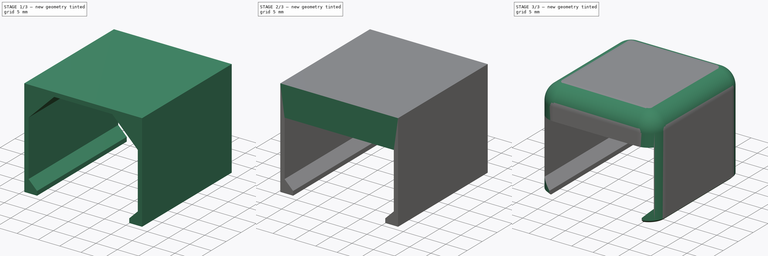
[diagram: build sequence overview — one tinted view per stage of 3, left to right]
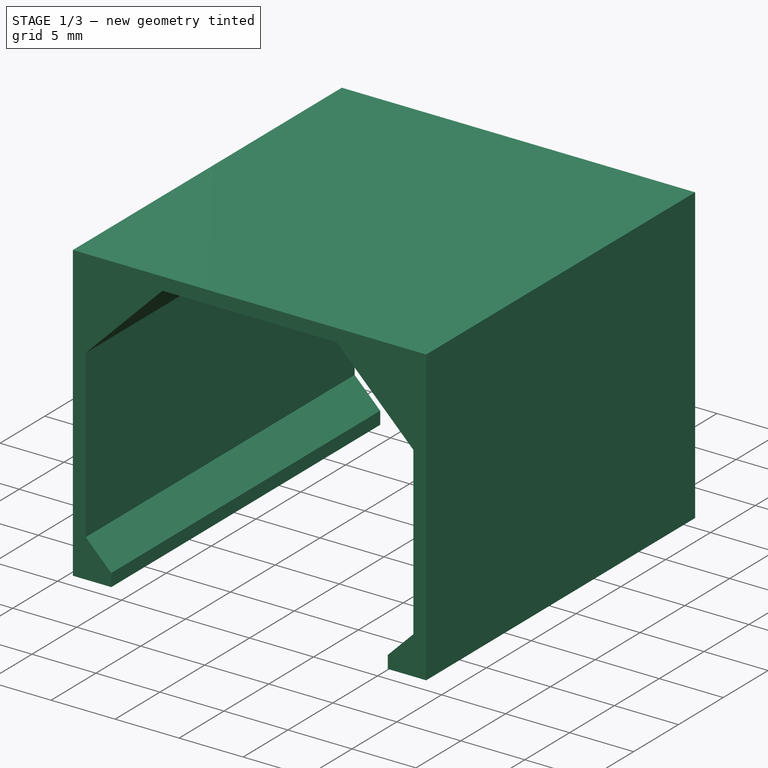
[diagram: stage 1 of 3 — iso view after this stage's code; geometry added in this stage tinted green]
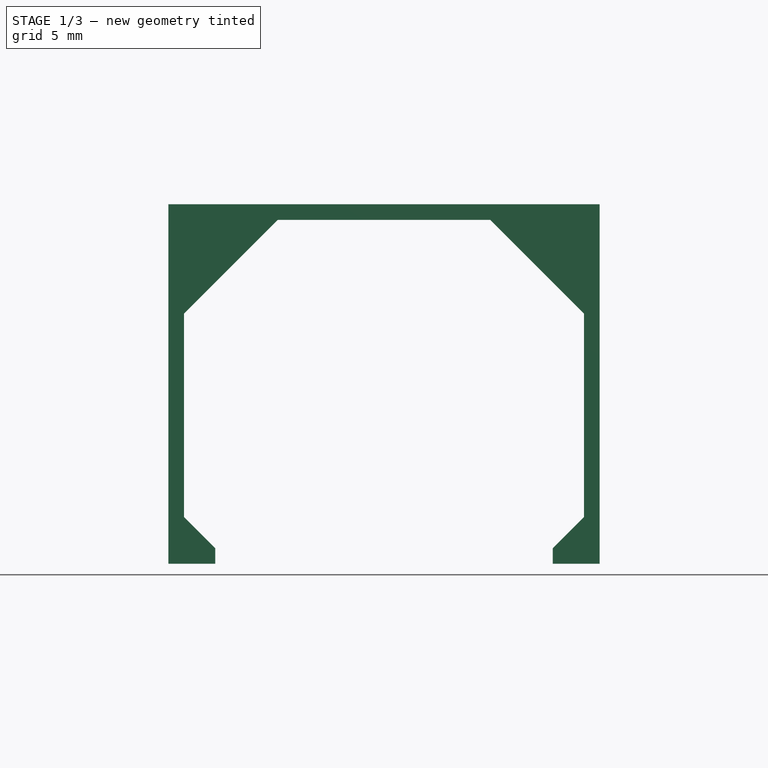
[diagram: stage 1 of 3 — front view after this stage's code; geometry added in this stage tinted green]
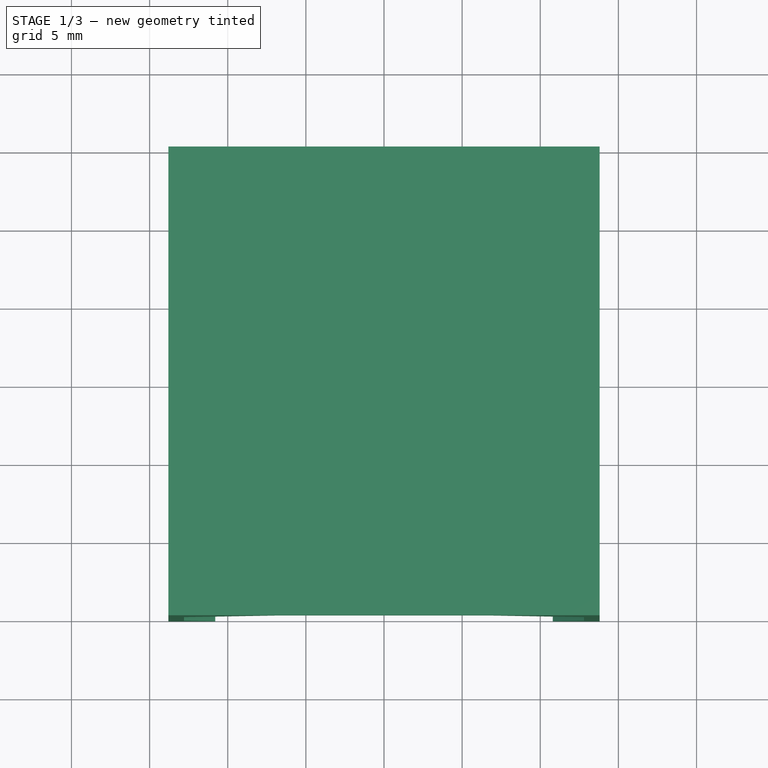
[diagram: stage 1 of 3 — top view after this stage's code; geometry added in this stage tinted green]
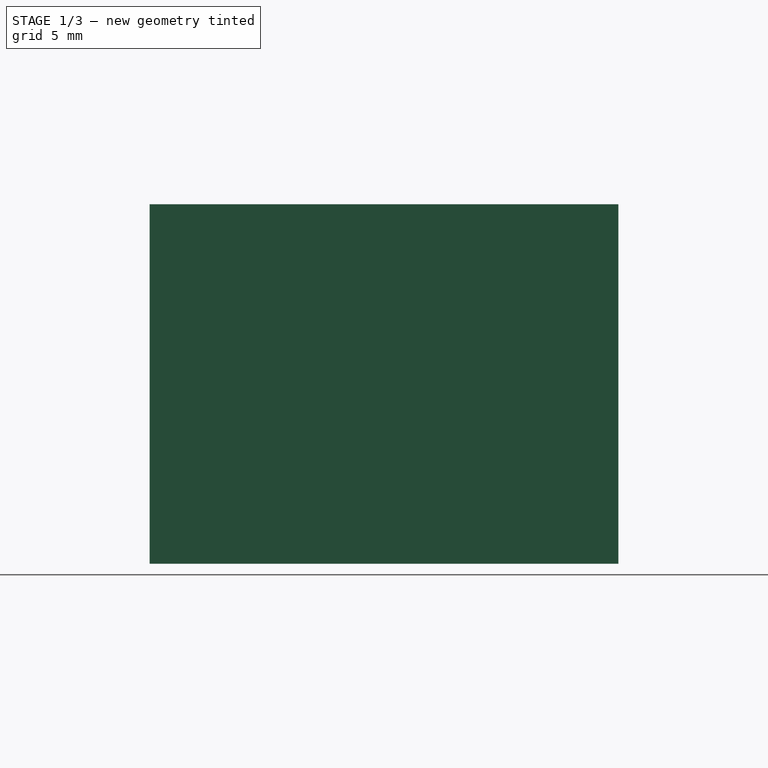
[diagram: stage 1 of 3 — right view after this stage's code; geometry added in this stage tinted green]
FCSTD DOCUMENT  (FreeCAD 1.0R39319 (Git))
Label: ChildCouchWallSwitchCover
License: All rights reserved
LicenseURL: https://en.wikipedia.org/wiki/All_rights_reserved
objects: Sketcher::SketchObject×3, PartDesign::Chamfer×3, PartDesign::Pad×2, PartDesign::Mirrored×1, PartDesign::Pocket×1, PartDesign::Fillet×1, PartDesign::Body×1
note: 30 computed .brp shape members not serialized (recipe doc carries the construction recipe); baked Part::Feature solids carry a one-line shape summary decoded from their .brp

FEATURE [Sketcher::SketchObject] Sketch
  ArcFitTolerance = 1e-06
  AttachmentSupport = -> [XZ_Plane]
  FullyConstrained = true
  MakeInternals = false
  MapMode = 5
  Placement = pos=(0,0,0) rot=(1,0,0;1.5708rad)
  expr: Constraints[19] = 15 mm + 6 mm
  sketch-geometry (12):
    g0: LineSegment StartX=-10.8 StartY=0 StartZ=0 EndX=-10.8 EndY=1 EndZ=0
    g1: LineSegment StartX=-10.8 StartY=1 StartZ=0 EndX=-12.8 EndY=1 EndZ=0
    g2: LineSegment StartX=-12.8 StartY=1 StartZ=0 EndX=-12.8 EndY=22 EndZ=0
    g3: LineSegment StartX=-13.8 StartY=23 StartZ=0 EndX=-13.8 EndY=0 EndZ=0
    g4: LineSegment StartX=-13.8 StartY=0 StartZ=0 EndX=-10.8 EndY=0 EndZ=0
    g5: LineSegment StartX=10.8 StartY=0 StartZ=0 EndX=10.8 EndY=1 EndZ=0
    g6: LineSegment StartX=10.8 StartY=1 StartZ=0 EndX=12.8 EndY=1 EndZ=0
    g7: LineSegment StartX=12.8 StartY=1 StartZ=0 EndX=12.8 EndY=22 EndZ=0
    g8: LineSegment StartX=13.8 StartY=23 StartZ=0 EndX=13.8 EndY=0 EndZ=0
    g9: LineSegment StartX=13.8 StartY=0 StartZ=0 EndX=10.8 EndY=0 EndZ=0
    g10: LineSegment StartX=-13.8 StartY=23 StartZ=0 EndX=13.8 EndY=23 EndZ=0
    g11: LineSegment StartX=12.8 StartY=22 StartZ=0 EndX=-12.8 EndY=22 EndZ=0
  constraints (31):
    c: PointOnObject(g0,g-1)
    c: Vertical(g0)
    c: Coincident(g0,g1)
    c: Horizontal(g1)
    c: Coincident(g1,g2)
    c: Vertical(g2)
    c: PointOnObject(g3,g-1)
    c: Vertical(g3)
    c: Coincident(g3,g4)
    c: Coincident(g4,g0)
    c: Vertical(g5)
    c: Coincident(g5,g6)
    c: Coincident(g6,g7)
    c: Coincident(g8,g9)
    c: Coincident(g9,g5)
    c: Coincident(g10,g3)
    c: Coincident(g10,g8)
    c: Coincident(g11,g7)
    c: Coincident(g11,g2)
    c: DistanceY(g7,g7) = 21
    c: DistanceY(g5,g5) = 1
    c: Horizontal(g9)
    c: Symmetric(g3,g8,g-2)
    c: Symmetric(g2,g7,g-2)
    c: Symmetric(g1,g6,g-2)
    c: Symmetric(g3,g8,g-2)
    c: Symmetric(g0,g5,g-2)
    c: DistanceX(g11,g11) = 25.6
    c: DistanceX(g6,g8) = 1
    c: DistanceY(g7,g8) = 1
    c: DistanceX(g1,g1) = 2
FEATURE [PartDesign::Pad] Pad
  Direction = (0,-1,2e-16)
  Length = 30
  Length2 = 10
  Midplane = true
  Placement = pos=(0,0,0) rot=(1,0,0;1.5708rad)
  Profile = -> Sketch
  ReferenceAxis = -> Sketch [N_Axis]
  Refine = true
  Suppressed = false
  Type = 0
FEATURE [PartDesign::Chamfer] Chamfer
  Angle = 45
  Base = -> Pad [Edge11,Edge20]
  BaseFeature = -> Pad
  ChamferType = 0
  FlipDirection = false
  Placement = pos=(0,0,0) rot=(1,0,0;1.5708rad)
  Refine = true
  Size = 1.99
  Size2 = 1
  SupportTransform = false
  Suppressed = false
  UseAllEdges = false
FEATURE [PartDesign::Chamfer] Chamfer001
  Angle = 45
  Base = -> Chamfer [Edge35,Edge33]
  BaseFeature = -> Chamfer
  ChamferType = 0
  FlipDirection = false
  Placement = pos=(0,0,0) rot=(1,0,0;1.5708rad)
  Refine = true
  Size = 6
  Size2 = 1
  SupportTransform = false
  Suppressed = false
  UseAllEdges = false
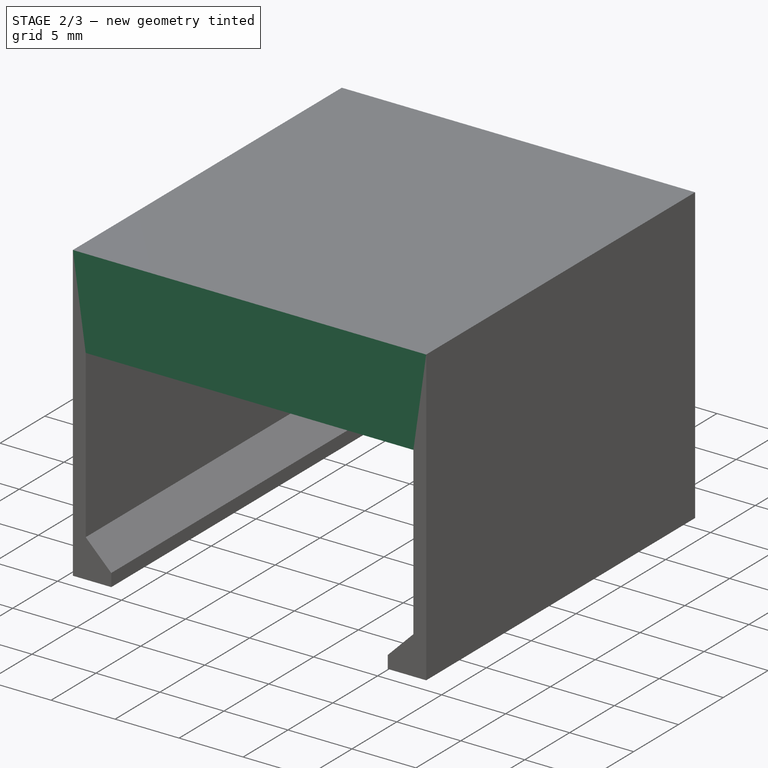
[diagram: stage 2 of 3 — iso view after this stage's code; geometry added in this stage tinted green]
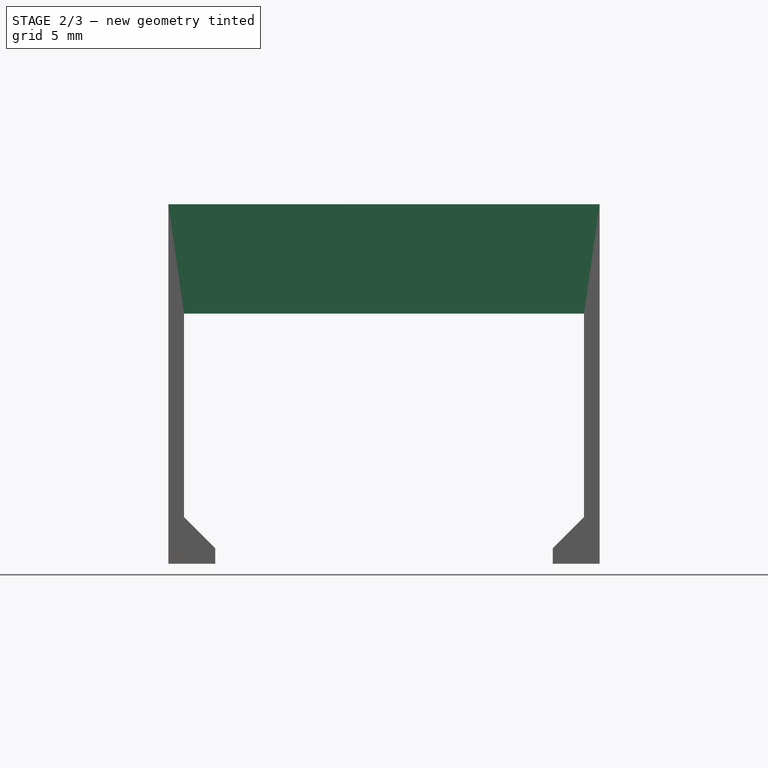
[diagram: stage 2 of 3 — front view after this stage's code; geometry added in this stage tinted green]
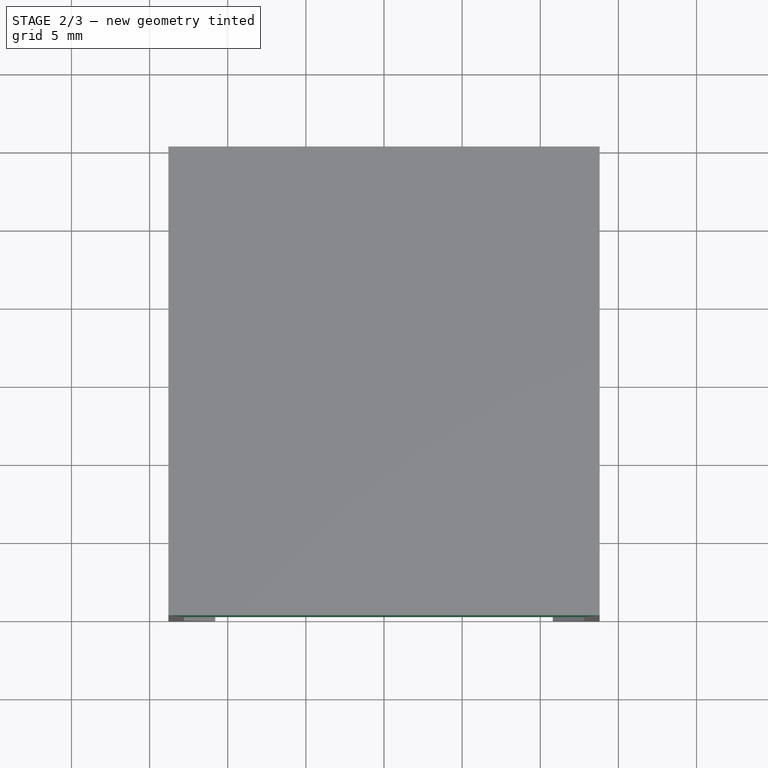
[diagram: stage 2 of 3 — top view after this stage's code; geometry added in this stage tinted green]
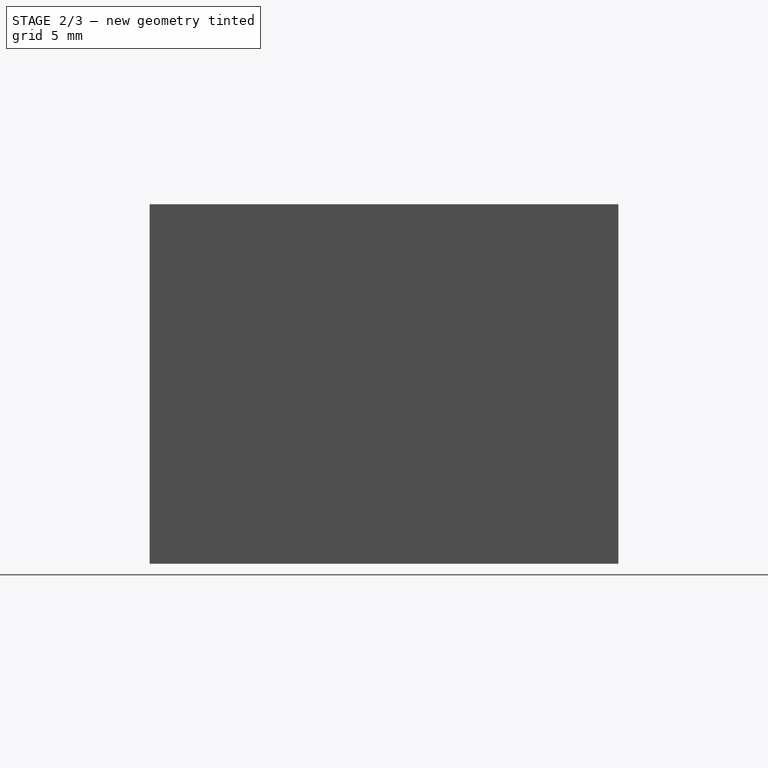
[diagram: stage 2 of 3 — right view after this stage's code; geometry added in this stage tinted green]
FEATURE [Sketcher::SketchObject] Sketch001
  ArcFitTolerance = 1e-06
  AttachmentSupport = -> [Chamfer001]
  ExternalGeometry = -> [Chamfer001]
  FullyConstrained = true
  MakeInternals = false
  MapMode = 5
  Placement = pos=(0,15,0) rot=(-1,0,0;1.5708rad)
  sketch-geometry (4):
    g0: LineSegment StartX=-13.8 StartY=-23 StartZ=0 EndX=13.8 EndY=-23 EndZ=0
    g1: LineSegment StartX=13.8 StartY=-23 StartZ=0 EndX=13.8 EndY=-16 EndZ=0
    g2: LineSegment StartX=13.8 StartY=-16 StartZ=0 EndX=-13.8 EndY=-16 EndZ=0
    g3: LineSegment StartX=-13.8 StartY=-16 StartZ=0 EndX=-13.8 EndY=-23 EndZ=0
  constraints (10):
    c: Coincident(g0,g1)
    c: Coincident(g1,g2)
    c: Coincident(g2,g3)
    c: Coincident(g3,g0)
    c: Horizontal(g2)
    c: Vertical(g1)
    c: Vertical(g3)
    c: Coincident(g0,g-3)
    c: Coincident(g0,g-3)
    c: DistanceY(g2,g-4) = 15
FEATURE [PartDesign::Pad] Pad001
  BaseFeature = -> Chamfer001
  Direction = (0,1,2e-16)
  Length = 4
  Length2 = 10
  Placement = pos=(0,0,0) rot=(1,0,0;1.5708rad)
  Profile = -> Sketch001
  ReferenceAxis = -> Sketch001 [N_Axis]
  Refine = true
  Reversed = true
  Suppressed = false
  Type = 0
FEATURE [PartDesign::Mirrored] Mirrored
  BaseFeature = -> Pad001
  MirrorPlane = -> XZ_Plane
  Originals = -> [Pad001]
  Placement = pos=(0,0,0) rot=(1,0,0;1.5708rad)
  Refine = true
  Suppressed = false
  TransformMode = 0
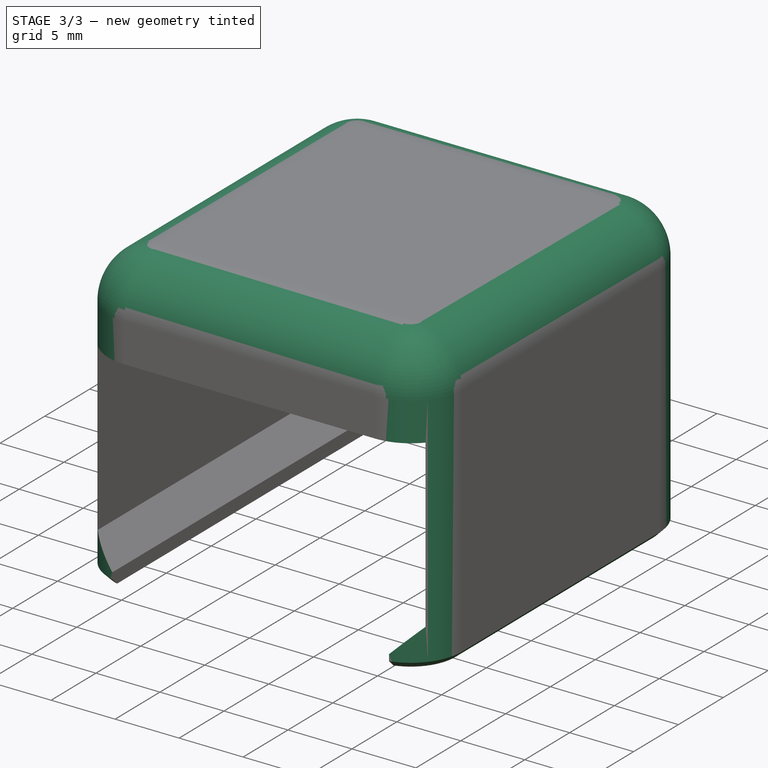
[diagram: stage 3 of 3 — iso view after this stage's code; geometry added in this stage tinted green]
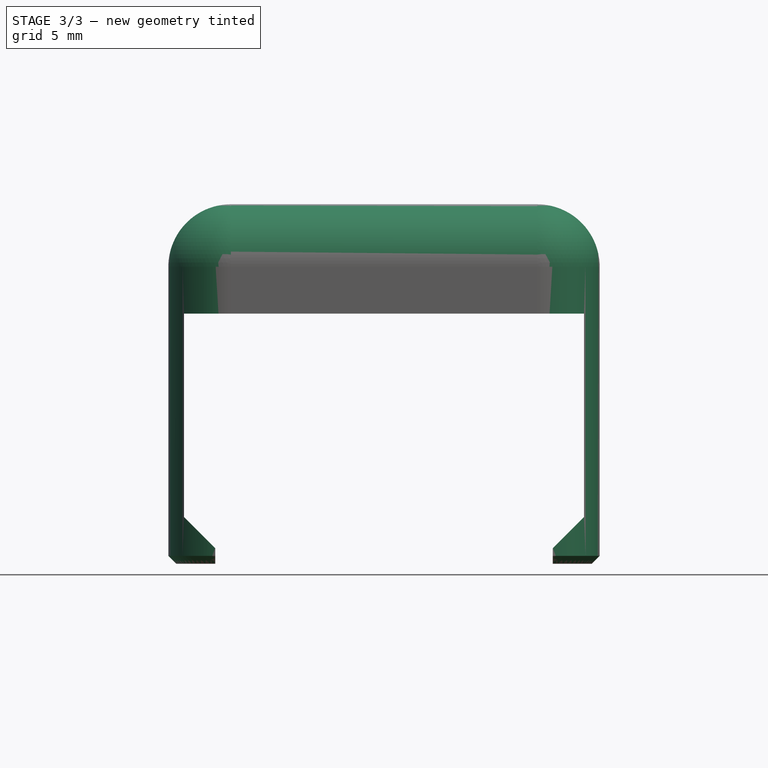
[diagram: stage 3 of 3 — front view after this stage's code; geometry added in this stage tinted green]
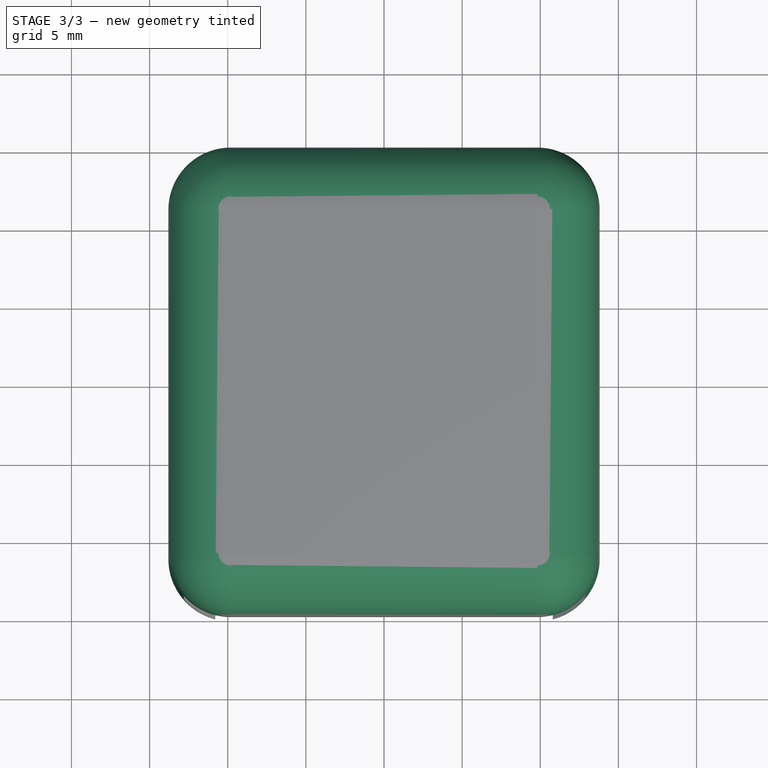
[diagram: stage 3 of 3 — top view after this stage's code; geometry added in this stage tinted green]
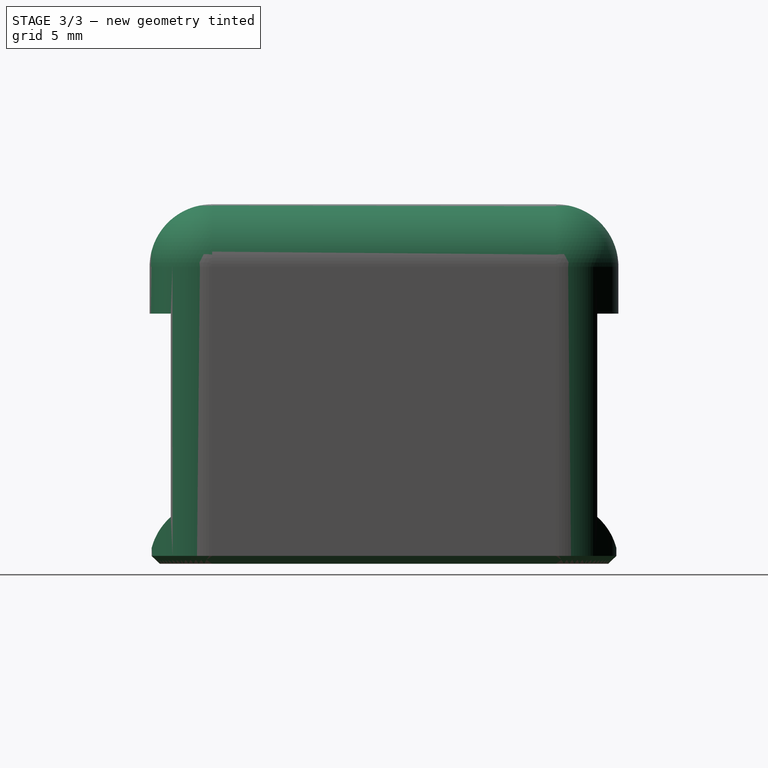
[diagram: stage 3 of 3 — right view after this stage's code; geometry added in this stage tinted green]
FEATURE [Sketcher::SketchObject] Sketch002
  ArcFitTolerance = 1e-06
  AttachmentSupport = -> [Mirrored]
  ExternalGeometry = -> [Mirrored]
  FullyConstrained = true
  MakeInternals = false
  MapMode = 5
  Placement = pos=(0,5.2e-15,23) rot=(0,0,1;3.14159rad)
  sketch-geometry (17):
    g0: LineSegment StartX=-13.8 StartY=11 StartZ=0 EndX=-13.8 EndY=-11 EndZ=0
    g1: LineSegment StartX=-9.8 StartY=-15 StartZ=0 EndX=9.8 EndY=-15 EndZ=0
    g2: LineSegment StartX=13.8 StartY=-11 StartZ=0 EndX=13.8 EndY=11 EndZ=0
    g3: LineSegment StartX=9.8 StartY=15 StartZ=0 EndX=-9.8 EndY=15 EndZ=0
    g4: ArcOfCircle CenterX=-9.8 CenterY=11 CenterZ=0 NormalX=0 NormalY=0 NormalZ=1 AngleXU=0 Radius=4 StartAngle=1.5708 EndAngle=3.14159
    g5: GeomPoint [constr] X=-13.8 Y=15 Z=0
    g6: ArcOfCircle CenterX=9.8 CenterY=11 CenterZ=0 NormalX=0 NormalY=0 NormalZ=1 AngleXU=0 Radius=4 StartAngle=0 EndAngle=1.5708
    g7: GeomPoint [constr] X=13.8 Y=15 Z=0
    g8: ArcOfCircle CenterX=9.8 CenterY=-11 CenterZ=0 NormalX=0 NormalY=0 NormalZ=1 AngleXU=0 Radius=4 StartAngle=4.71239 EndAngle=6.28319
    g9: GeomPoint [constr] X=13.8 Y=-15 Z=0
    g10: ArcOfCircle CenterX=-9.8 CenterY=-11 CenterZ=0 NormalX=0 NormalY=0 NormalZ=1 AngleXU=0 Radius=4 StartAngle=3.14159 EndAngle=4.71239
    g11: GeomPoint [constr] X=-13.8 Y=-15 Z=0
    g12: LineSegment StartX=-15.8 StartY=17 StartZ=0 EndX=-15.8 EndY=-17 EndZ=0
    g13: LineSegment StartX=-15.8 StartY=-17 StartZ=0 EndX=15.8 EndY=-17 EndZ=0
    g14: LineSegment StartX=15.8 StartY=-17 StartZ=0 EndX=15.8 EndY=17 EndZ=0
    g15: LineSegment StartX=15.8 StartY=17 StartZ=0 EndX=-15.8 EndY=17 EndZ=0
    g16: GeomPoint [constr] X=0 Y=0 Z=0
  constraints (38):
    c: Vertical(g0)
    c: Vertical(g2)
    c: Horizontal(g1)
    c: Horizontal(g3)
    c: Coincident(g5,g-3)
    c: Coincident(g9,g-4)
    c: PointOnObject(g5,g3)
    c: PointOnObject(g5,g0)
    c: Tangent(g3,g4) = -1.5708
    c: Tangent(g0,g4) = -1.5708
    c: PointOnObject(g7,g3)
    c: PointOnObject(g7,g2)
    c: Tangent(g3,g6) = -1.5708
    c: Tangent(g2,g6) = -1.5708
    c: PointOnObject(g9,g2)
    c: PointOnObject(g9,g1)
    c: Tangent(g2,g8) = -1.5708
    c: Tangent(g1,g8) = -1.5708
    c: PointOnObject(g11,g1)
    c: PointOnObject(g11,g0)
    c: Tangent(g1,g10) = -1.5708
    c: Tangent(g0,g10) = -1.5708
    c: Equal(g4,g6)
    c: Equal(g4,g10)
    c: Equal(g4,g8)
    c: Radius(g4) = 4
    c: Coincident(g12,g13)
    c: Coincident(g13,g14)
    c: Coincident(g14,g15)
    c: Coincident(g15,g12)
    c: Vertical(g12)
    c: Vertical(g14)
    c: Horizontal(g13)
    c: Horizontal(g15)
    c: Symmetric(g14,g12,g16)
    c: Coincident(g16,g-1)
    c: DistanceX(g7,g14) = 2
    c: DistanceY(g7,g14) = 2
FEATURE [PartDesign::Pocket] Pocket
  BaseFeature = -> Mirrored
  Direction = (0,0,-1)
  Length = 5
  Length2 = 5
  Placement = pos=(0,0,0) rot=(1,0,0;1.5708rad)
  Profile = -> Sketch002
  ReferenceAxis = -> Sketch002 [N_Axis]
  Refine = true
  Suppressed = false
  Type = 1
FEATURE [PartDesign::Fillet] Fillet
  Base = -> Pocket [Face6]
  BaseFeature = -> Pocket
  Placement = pos=(0,0,0) rot=(1,0,0;1.5708rad)
  Radius = 4
  Refine = true
  SupportTransform = false
  Suppressed = false
  UseAllEdges = false
FEATURE [PartDesign::Chamfer] Chamfer002
  Angle = 45
  Base = -> Fillet [Edge69,Edge12]
  BaseFeature = -> Fillet
  ChamferType = 0
  FlipDirection = false
  Placement = pos=(0,0,0) rot=(1,0,0;1.5708rad)
  Refine = true
  Size = 0.5
  Size2 = 1
  SupportTransform = false
  Suppressed = false
  UseAllEdges = false
FEATURE [PartDesign::Body] Body
  AllowCompound = false
  Group = -> [Sketch,Pad,Chamfer,Chamfer001,Sketch001,Pad001,Mirrored,Sketch002,Pocket,Fillet,Chamfer002]
  Origin = -> Origin
  Tip = -> Chamfer002
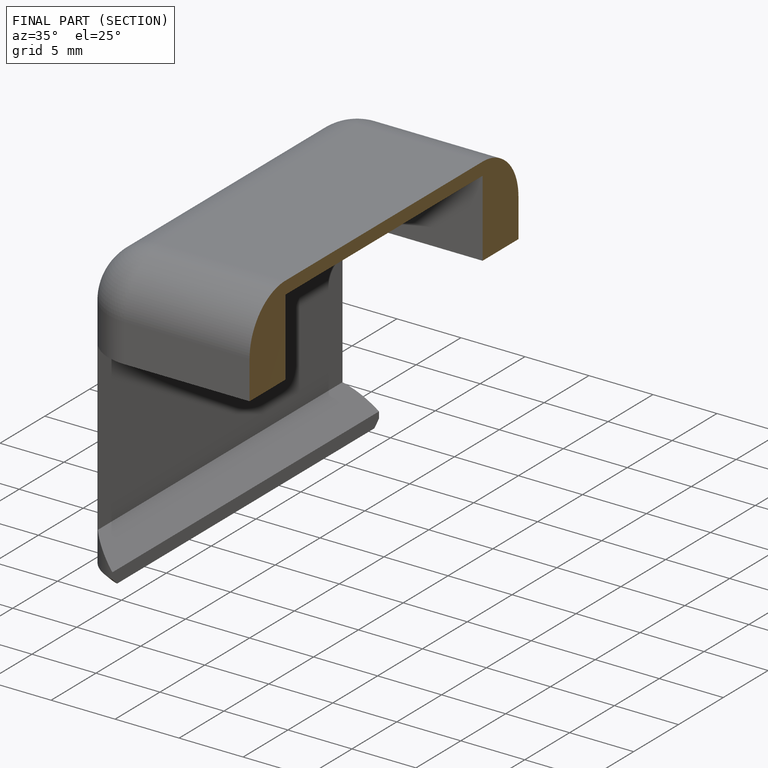
[diagram: finished part — half-section view (interior)]
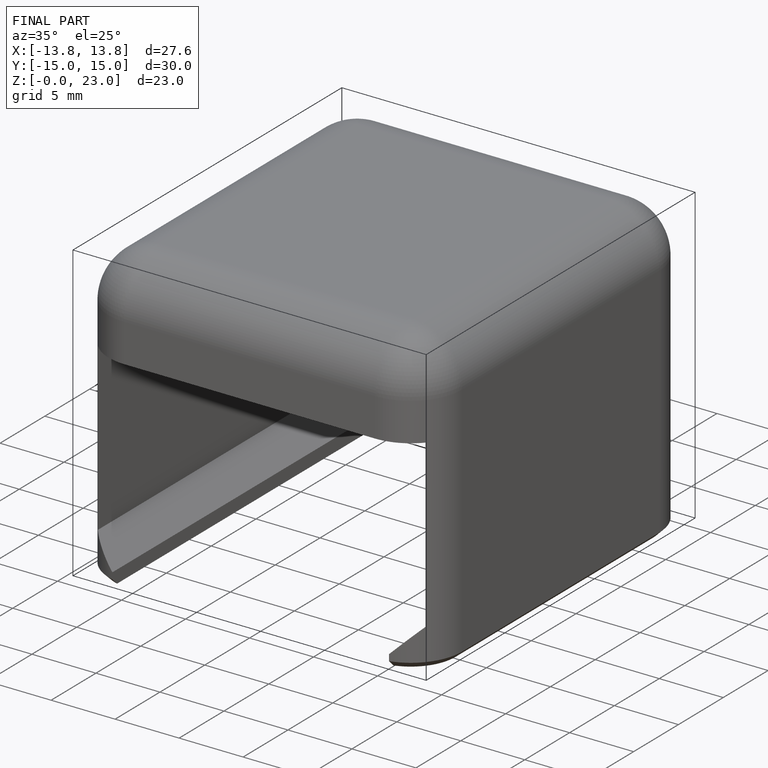
[diagram: finished part — iso view with bounding-box wireframe]
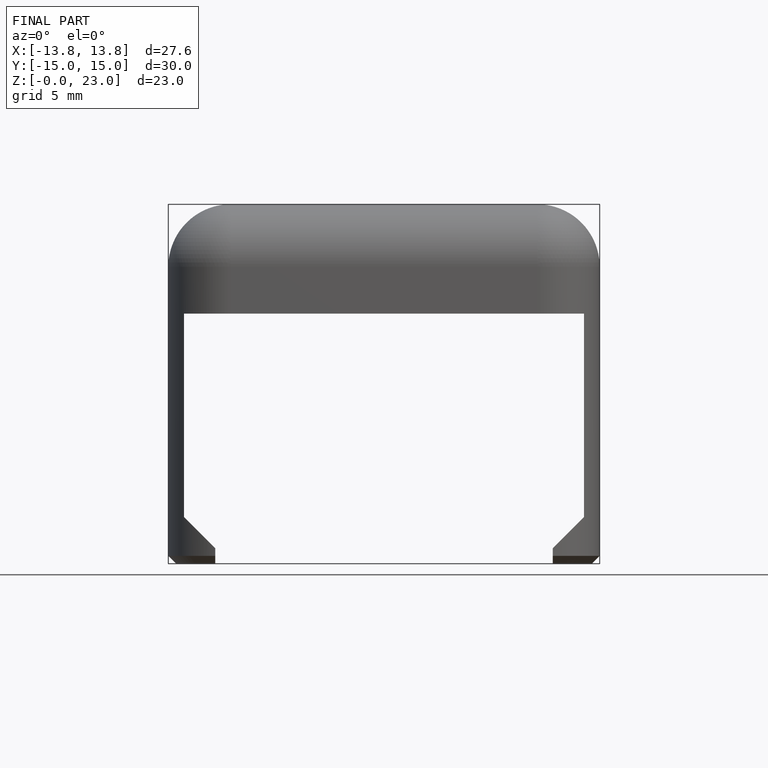
[diagram: finished part — front view with bounding-box wireframe]
